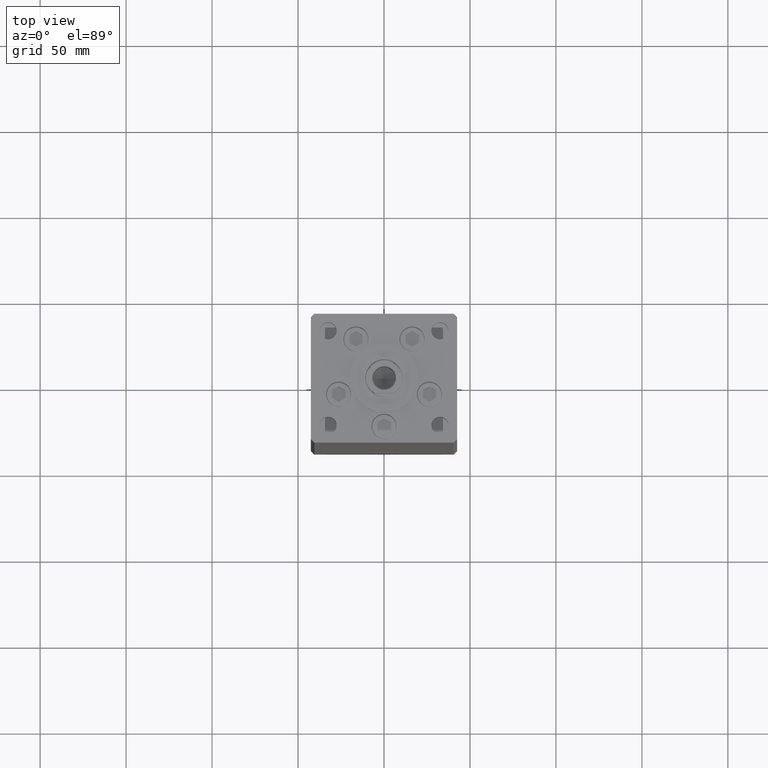
[diagram: clean part render]
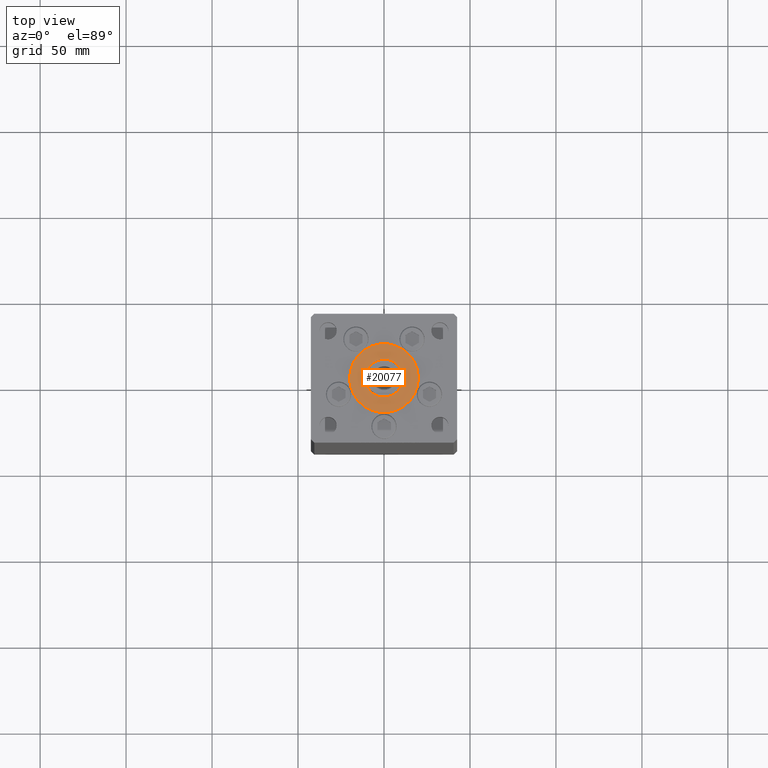
[diagram: same view with one face highlighted and labeled with its STEP entity id]
A machine part, top view. The second image highlights one B-rep face of the part: STEP entity #20077.
In plain terms, the highlighted planar face has unit normal (0, 0, 1).
Its self-contained STEP definition (entity closure, byte-faithful):
#238 = AXIS2_PLACEMENT_3D ( 'NONE', #20899, #40690, #41735 ) ;
#1994 = CARTESIAN_POINT ( 'NONE',  ( 0.000000000000000000, -6.938893903907228378E-15, 2.000000000000000000 ) ) ;
#2113 = CARTESIAN_POINT ( 'NONE',  ( 20.00000000000000000, -4.489600305612522259E-15, 2.000000000000000000 ) ) ;
#3211 = ORIENTED_EDGE ( 'NONE', *, *, #15589, .F. ) ;
#3909 = ORIENTED_EDGE ( 'NONE', *, *, #51474, .T. ) ;
#4482 = DIRECTION ( 'NONE',  ( 1.000000000000000000, 0.000000000000000000, -0.000000000000000000 ) ) ;
#5461 = EDGE_LOOP ( 'NONE', ( #33815, #3909 ) ) ;
#5955 = DIRECTION ( 'NONE',  ( 1.000000000000000000, 0.000000000000000000, 0.000000000000000000 ) ) ;
#7208 = AXIS2_PLACEMENT_3D ( 'NONE', #50503, #30460, #22019 ) ;
#11069 = AXIS2_PLACEMENT_3D ( 'NONE', #22578, #14146, #21791 ) ;
#12388 = PLANE ( 'NONE',  #51839 ) ;
#12459 = VERTEX_POINT ( 'NONE', #51378 ) ;
#12648 = FACE_OUTER_BOUND ( 'NONE', #5461, .T. ) ;
#14146 = DIRECTION ( 'NONE',  ( 0.000000000000000000, 0.000000000000000000, 1.000000000000000000 ) ) ;
#15499 = AXIS2_PLACEMENT_3D ( 'NONE', #1994, #42089, #5955 ) ;
#15589 = EDGE_CURVE ( 'NONE', #12459, #30378, #39075, .T. ) ;
#16475 = CIRCLE ( 'NONE', #7208, 20.00000000000000000 ) ;
#16844 = VERTEX_POINT ( 'NONE', #38654 ) ;
#17097 = CARTESIAN_POINT ( 'NONE',  ( -11.00000000000000000, -5.591782424845139381E-15, 2.000000000000000000 ) ) ;
#20077 = ADVANCED_FACE ( 'NONE', ( #24275, #12648 ), #12388, .T. ) ;
#20899 = CARTESIAN_POINT ( 'NONE',  ( 0.000000000000000000, -6.938893903907228378E-15, 2.000000000000000000 ) ) ;
#21791 = DIRECTION ( 'NONE',  ( 1.000000000000000000, 0.000000000000000000, 0.000000000000000000 ) ) ;
#22019 = DIRECTION ( 'NONE',  ( 1.000000000000000000, 0.000000000000000000, 0.000000000000000000 ) ) ;
#22578 = CARTESIAN_POINT ( 'NONE',  ( 0.000000000000000000, -6.938893903907228378E-15, 2.000000000000000000 ) ) ;
#24275 = FACE_BOUND ( 'NONE', #31420, .T. ) ;
#24529 = CARTESIAN_POINT ( 'NONE',  ( 0.000000000000000000, -6.938893903907228378E-15, 2.000000000000000000 ) ) ;
#25825 = EDGE_CURVE ( 'NONE', #16844, #35431, #16475, .T. ) ;
#30378 = VERTEX_POINT ( 'NONE', #17097 ) ;
#30460 = DIRECTION ( 'NONE',  ( 0.000000000000000000, 0.000000000000000000, 1.000000000000000000 ) ) ;
#31420 = EDGE_LOOP ( 'NONE', ( #3211, #51960 ) ) ;
#33815 = ORIENTED_EDGE ( 'NONE', *, *, #25825, .T. ) ;
#35431 = VERTEX_POINT ( 'NONE', #2113 ) ;
#38654 = CARTESIAN_POINT ( 'NONE',  ( -20.00000000000000000, -6.938893903907228378E-15, 2.000000000000000000 ) ) ;
#39075 = CIRCLE ( 'NONE', #15499, 11.00000000000000000 ) ;
#40615 = DIRECTION ( 'NONE',  ( 0.000000000000000000, 0.000000000000000000, 1.000000000000000000 ) ) ;
#40690 = DIRECTION ( 'NONE',  ( 0.000000000000000000, 0.000000000000000000, 1.000000000000000000 ) ) ;
#41531 = CIRCLE ( 'NONE', #238, 20.00000000000000000 ) ;
#41735 = DIRECTION ( 'NONE',  ( 1.000000000000000000, 0.000000000000000000, 0.000000000000000000 ) ) ;
#42089 = DIRECTION ( 'NONE',  ( 0.000000000000000000, 0.000000000000000000, 1.000000000000000000 ) ) ;
#45653 = CIRCLE ( 'NONE', #11069, 11.00000000000000000 ) ;
#47827 = EDGE_CURVE ( 'NONE', #30378, #12459, #45653, .T. ) ;
#50503 = CARTESIAN_POINT ( 'NONE',  ( 0.000000000000000000, -6.938893903907228378E-15, 2.000000000000000000 ) ) ;
#51378 = CARTESIAN_POINT ( 'NONE',  ( 11.00000000000000000, -6.938893903907228378E-15, 2.000000000000000000 ) ) ;
#51474 = EDGE_CURVE ( 'NONE', #35431, #16844, #41531, .T. ) ;
#51839 = AXIS2_PLACEMENT_3D ( 'NONE', #24529, #40615, #4482 ) ;
#51960 = ORIENTED_EDGE ( 'NONE', *, *, #47827, .F. ) ;